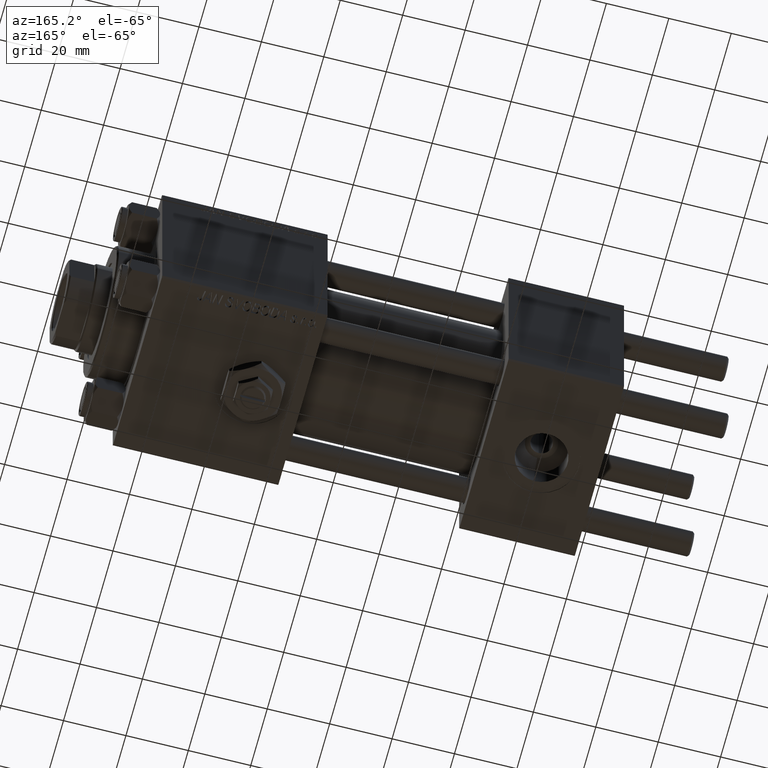
[diagram: clean part render]
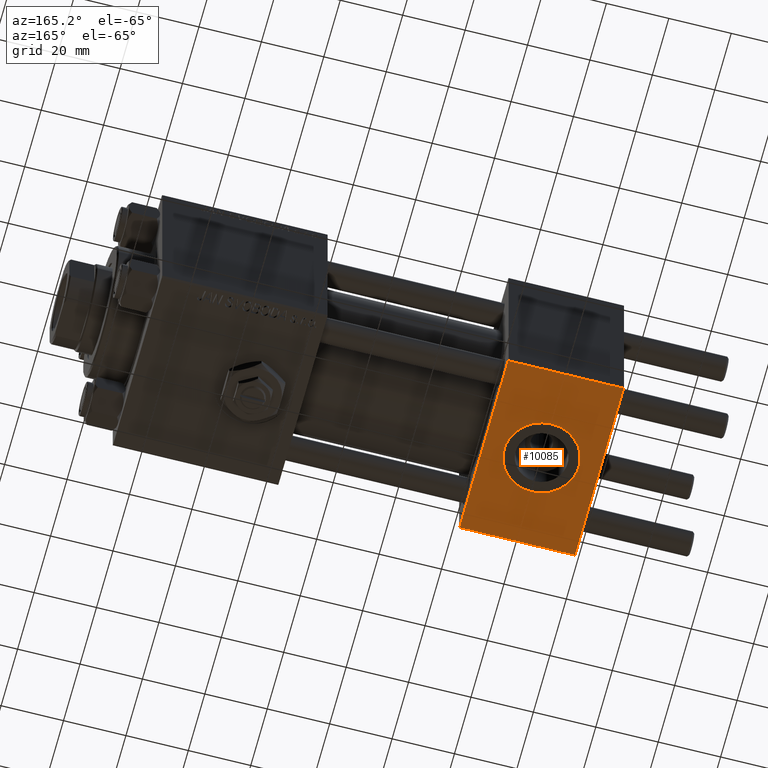
[diagram: same view with one face highlighted and labeled with its STEP entity id]
A machine part, auxiliary view. The second image highlights one B-rep face of the part: STEP entity #10085.
In plain terms, the highlighted planar face has unit normal (0, 0, -1).
Its self-contained STEP definition (entity closure, byte-faithful):
#1590 = CARTESIAN_POINT ( 'NONE',  ( 0.000000000000000000, 29.49999999999997868, -30.00000000000000000 ) ) ;
#2422 = VECTOR ( 'NONE', #29335, 1000.000000000000000 ) ;
#3213 = AXIS2_PLACEMENT_3D ( 'NONE', #41033, #5293, #17547 ) ;
#3263 = DIRECTION ( 'NONE',  ( 1.000000000000000000, 0.000000000000000000, 0.000000000000000000 ) ) ;
#3506 = DIRECTION ( 'NONE',  ( 0.000000000000000000, 1.000000000000000000, 1.156482317317871725E-16 ) ) ;
#3653 = EDGE_CURVE ( 'NONE', #44603, #15260, #27198, .T. ) ;
#5293 = DIRECTION ( 'NONE',  ( 0.000000000000000000, -1.734723475976806848E-16, -1.000000000000000000 ) ) ;
#5877 = LINE ( 'NONE', #28865, #15881 ) ;
#7166 = CARTESIAN_POINT ( 'NONE',  ( 37.00000000000000000, 29.49999999999997868, -30.00000000000000000 ) ) ;
#10085 = ADVANCED_FACE ( 'NONE', ( #35333, #23066 ), #27253, .T. ) ;
#10927 = ORIENTED_EDGE ( 'NONE', *, *, #28540, .T. ) ;
#11502 = ORIENTED_EDGE ( 'NONE', *, *, #46757, .F. ) ;
#12259 = VECTOR ( 'NONE', #3263, 1000.000000000000000 ) ;
#13288 = EDGE_CURVE ( 'NONE', #33948, #25520, #14986, .T. ) ;
#14986 = LINE ( 'NONE', #30920, #26234 ) ;
#15145 = VERTEX_POINT ( 'NONE', #21771 ) ;
#15166 = ORIENTED_EDGE ( 'NONE', *, *, #13288, .F. ) ;
#15260 = VERTEX_POINT ( 'NONE', #36086 ) ;
#15881 = VECTOR ( 'NONE', #21806, 1000.000000000000000 ) ;
#17161 = EDGE_LOOP ( 'NONE', ( #15166, #20610, #19049, #10927 ) ) ;
#17547 = DIRECTION ( 'NONE',  ( 0.000000000000000000, 1.000000000000000000, -2.891205793294677833E-16 ) ) ;
#17917 = EDGE_LOOP ( 'NONE', ( #11502, #32323 ) ) ;
#19049 = ORIENTED_EDGE ( 'NONE', *, *, #51217, .T. ) ;
#20610 = ORIENTED_EDGE ( 'NONE', *, *, #21946, .T. ) ;
#21490 = CARTESIAN_POINT ( 'NONE',  ( 18.50000000000000000, -12.00000000000000178, -30.00000000000000000 ) ) ;
#21771 = CARTESIAN_POINT ( 'NONE',  ( 37.00000000000000000, 29.49999999999997868, -30.00000000000000000 ) ) ;
#21806 = DIRECTION ( 'NONE',  ( 0.000000000000000000, -1.000000000000000000, -1.156482317317871725E-16 ) ) ;
#21946 = EDGE_CURVE ( 'NONE', #33948, #15145, #23089, .T. ) ;
#23066 = FACE_OUTER_BOUND ( 'NONE', #17161, .T. ) ;
#23089 = LINE ( 'NONE', #7166, #12259 ) ;
#24320 = CARTESIAN_POINT ( 'NONE',  ( 0.000000000000000000, -29.50000000000000000, -30.00000000000000711 ) ) ;
#25520 = VERTEX_POINT ( 'NONE', #24320 ) ;
#25921 = CARTESIAN_POINT ( 'NONE',  ( 0.000000000000000000, -29.50000000000001066, -30.00000000000000711 ) ) ;
#26234 = VECTOR ( 'NONE', #35594, 1000.000000000000000 ) ;
#27198 = CIRCLE ( 'NONE', #28015, 12.00000000000000178 ) ;
#27253 = PLANE ( 'NONE',  #29088 ) ;
#28015 = AXIS2_PLACEMENT_3D ( 'NONE', #31678, #43659, #47054 ) ;
#28540 = EDGE_CURVE ( 'NONE', #45269, #25520, #41814, .T. ) ;
#28865 = CARTESIAN_POINT ( 'NONE',  ( 37.00000000000000000, 29.99999999999999289, -30.00000000000000000 ) ) ;
#29088 = AXIS2_PLACEMENT_3D ( 'NONE', #43148, #39242, #3506 ) ;
#29335 = DIRECTION ( 'NONE',  ( -1.000000000000000000, 0.000000000000000000, 0.000000000000000000 ) ) ;
#30920 = CARTESIAN_POINT ( 'NONE',  ( 0.000000000000000000, 29.99999999999999289, -30.00000000000000000 ) ) ;
#31678 = CARTESIAN_POINT ( 'NONE',  ( 18.50000000000000000, 2.651473169999849714E-16, -30.00000000000000355 ) ) ;
#32323 = ORIENTED_EDGE ( 'NONE', *, *, #3653, .F. ) ;
#33948 = VERTEX_POINT ( 'NONE', #1590 ) ;
#35333 = FACE_BOUND ( 'NONE', #17917, .T. ) ;
#35594 = DIRECTION ( 'NONE',  ( 0.000000000000000000, -1.000000000000000000, -1.156482317317871725E-16 ) ) ;
#36086 = CARTESIAN_POINT ( 'NONE',  ( 18.50000000000000000, 12.00000000000000178, -30.00000000000000711 ) ) ;
#36778 = CARTESIAN_POINT ( 'NONE',  ( 37.00000000000000000, -29.50000000000000000, -30.00000000000000711 ) ) ;
#39242 = DIRECTION ( 'NONE',  ( 0.000000000000000000, 1.156482317317871725E-16, -1.000000000000000000 ) ) ;
#41033 = CARTESIAN_POINT ( 'NONE',  ( 18.50000000000000000, 2.651473169999849714E-16, -30.00000000000000355 ) ) ;
#41814 = LINE ( 'NONE', #25921, #2422 ) ;
#43148 = CARTESIAN_POINT ( 'NONE',  ( 37.00000000000000000, 29.99999999999999289, -30.00000000000000000 ) ) ;
#43659 = DIRECTION ( 'NONE',  ( 0.000000000000000000, -1.734723475976806848E-16, -1.000000000000000000 ) ) ;
#44603 = VERTEX_POINT ( 'NONE', #21490 ) ;
#45269 = VERTEX_POINT ( 'NONE', #36778 ) ;
#46757 = EDGE_CURVE ( 'NONE', #15260, #44603, #49025, .T. ) ;
#47054 = DIRECTION ( 'NONE',  ( 0.000000000000000000, 1.000000000000000000, -2.891205793294677833E-16 ) ) ;
#49025 = CIRCLE ( 'NONE', #3213, 12.00000000000000178 ) ;
#51217 = EDGE_CURVE ( 'NONE', #15145, #45269, #5877, .T. ) ;